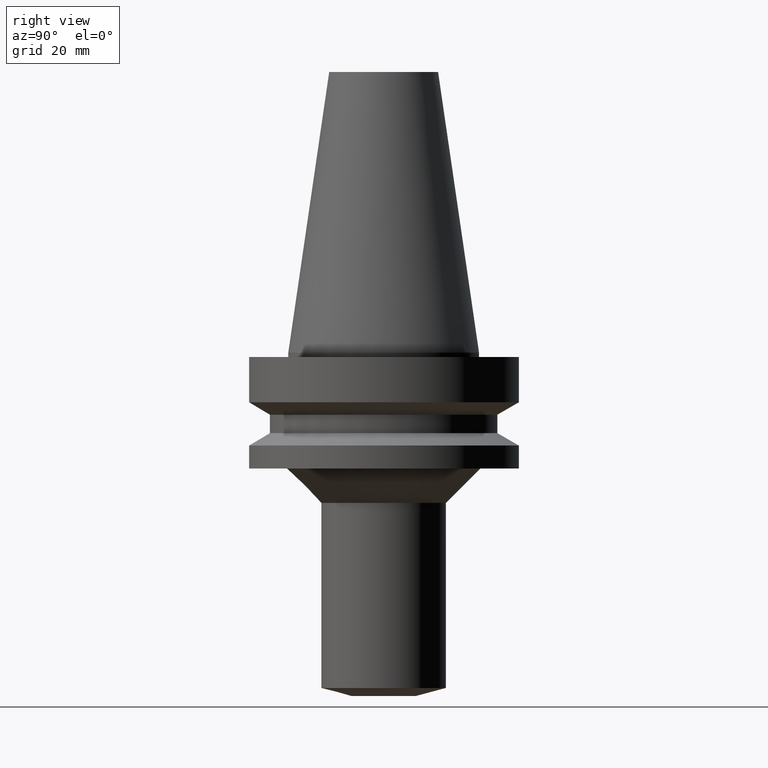
[diagram: clean part render]
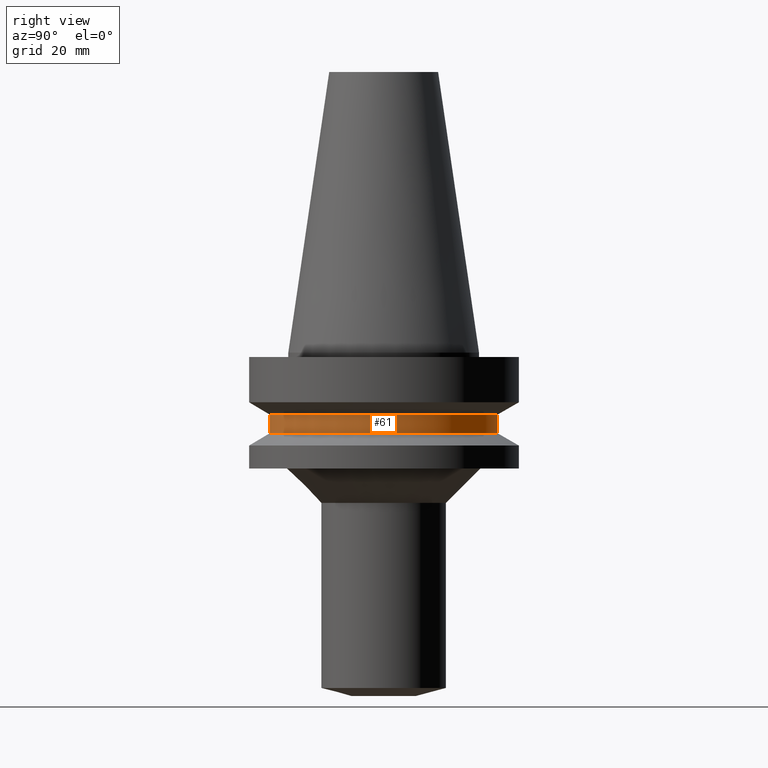
[diagram: same view with one face highlighted and labeled with its STEP entity id]
A machine part, right view. The second image highlights one B-rep face of the part: STEP entity #61.
In plain terms, the highlighted cylindrical surface (bore or boss wall) has radius 26.5 mm, axis along (0, -0, -1).
Its self-contained STEP definition (entity closure, byte-faithful):
#61=ADVANCED_FACE('Unnamed[1]',(#152,#153),#154,.T.);
#69=EDGE_CURVE('Unnamed[1]',#166,#166,#167,.T.);
#71=EDGE_CURVE('Unnamed[1]',#169,#169,#170,.T.);
#152=FACE_BOUND('',#272,.T.);
#153=FACE_BOUND('',#273,.T.);
#154=CYLINDRICAL_SURFACE('',#274,26.4999999999997);
#166=VERTEX_POINT('',#289);
#167=CIRCLE('',#290,26.4999999999994);
#169=VERTEX_POINT('',#293);
#170=CIRCLE('',#294,26.5);
#272=EDGE_LOOP('',(#407));
#273=EDGE_LOOP('',(#408));
#274=AXIS2_PLACEMENT_3D('',#409,#410,#411);
#289=CARTESIAN_POINT('',(8.8494551369045E-016,26.4999999999995,-14.4522569986152));
#290=AXIS2_PLACEMENT_3D('',#424,#425,#426);
#293=CARTESIAN_POINT('',(1.1479681728942E-015,26.5,-18.7477430013855));
#294=AXIS2_PLACEMENT_3D('',#427,#428,#429);
#407=ORIENTED_EDGE('',*,*,#71,.F.);
#408=ORIENTED_EDGE('',*,*,#69,.T.);
#409=CARTESIAN_POINT('',(1.01645684329232E-015,2.35462830610728E-014,-16.6000000000003));
#410=DIRECTION('',(6.12323399573677E-017,-6.46048942079378E-016,-1.0));
#411=DIRECTION('',(3.47319357197332E-032,1.0,-6.46048942079378E-016));
#424=CARTESIAN_POINT('',(8.8494551369045E-016,2.49338301549761E-014,-14.4522569986152));
#425=DIRECTION('',(6.12323399573676E-017,-6.46048942079378E-016,-1.0));
#426=DIRECTION('',(3.47319357197332E-032,1.0,-6.46048942079378E-016));
#427=CARTESIAN_POINT('',(1.1479681728942E-015,2.21587359671696E-014,-18.7477430013855));
#428=DIRECTION('',(6.12323399573677E-017,-6.46048942079378E-016,-1.0));
#429=DIRECTION('',(3.47319357197332E-032,1.0,-6.46048942079378E-016));